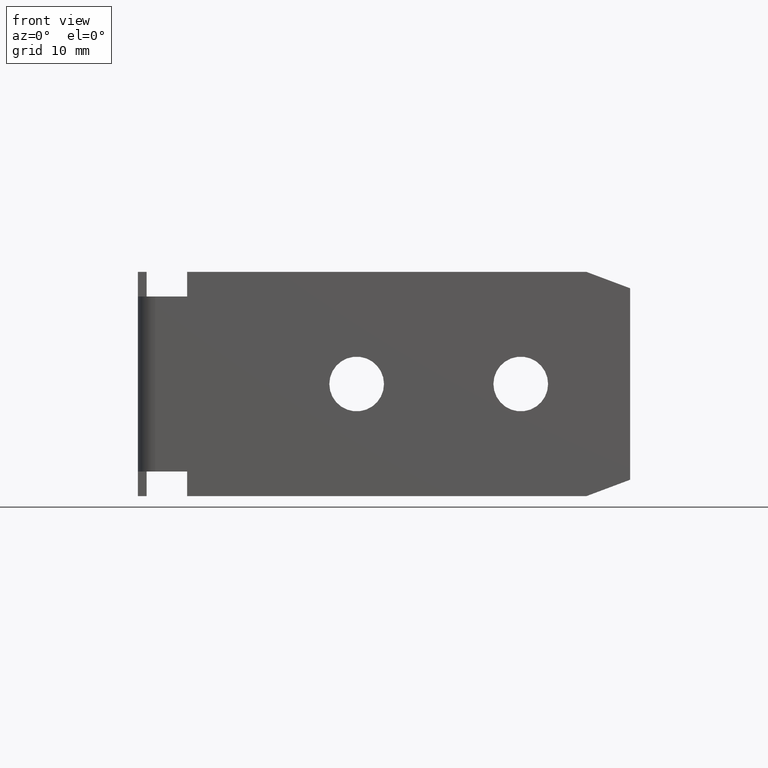
[diagram: clean part render]
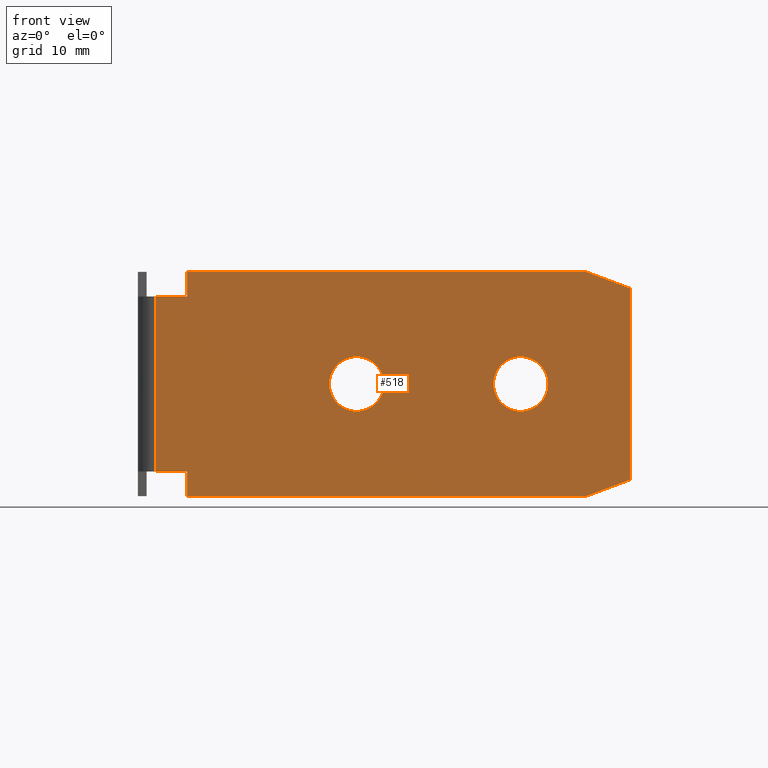
[diagram: same view with one face highlighted and labeled with its STEP entity id]
A machine part, front view. The second image highlights one B-rep face of the part: STEP entity #518.
In plain terms, the highlighted planar face has unit normal (0, -1, 0).
Its self-contained STEP definition (entity closure, byte-faithful):
#19=FACE_BOUND('',#87,.T.);
#20=FACE_BOUND('',#88,.T.);
#30=PLANE('',#579);
#56=FACE_OUTER_BOUND('',#86,.T.);
#86=EDGE_LOOP('',(#427,#428,#429,#430,#431,#432,#433,#434,#435,#436));
#87=EDGE_LOOP('',(#437));
#88=EDGE_LOOP('',(#438));
#103=LINE('',#736,#163);
#110=LINE('',#753,#170);
#140=LINE('',#829,#200);
#141=LINE('',#831,#201);
#142=LINE('',#833,#202);
#143=LINE('',#835,#203);
#144=LINE('',#837,#204);
#145=LINE('',#839,#205);
#146=LINE('',#841,#206);
#147=LINE('',#842,#207);
#163=VECTOR('',#598,10.);
#170=VECTOR('',#611,10.);
#200=VECTOR('',#683,10.);
#201=VECTOR('',#684,10.);
#202=VECTOR('',#685,10.);
#203=VECTOR('',#686,10.);
#204=VECTOR('',#687,10.);
#205=VECTOR('',#688,10.);
#206=VECTOR('',#689,10.);
#207=VECTOR('',#690,10.);
#231=CIRCLE('',#570,2.5);
#233=CIRCLE('',#573,2.5);
#236=VERTEX_POINT('',#733);
#237=VERTEX_POINT('',#735);
#244=VERTEX_POINT('',#751);
#265=VERTEX_POINT('',#805);
#267=VERTEX_POINT('',#811);
#269=VERTEX_POINT('',#828);
#270=VERTEX_POINT('',#830);
#271=VERTEX_POINT('',#832);
#272=VERTEX_POINT('',#834);
#273=VERTEX_POINT('',#836);
#274=VERTEX_POINT('',#838);
#275=VERTEX_POINT('',#840);
#284=EDGE_CURVE('',#236,#237,#103,.T.);
#293=EDGE_CURVE('',#236,#244,#110,.T.);
#319=EDGE_CURVE('',#265,#265,#231,.T.);
#322=EDGE_CURVE('',#267,#267,#233,.T.);
#332=EDGE_CURVE('',#244,#269,#140,.T.);
#333=EDGE_CURVE('',#269,#270,#141,.T.);
#334=EDGE_CURVE('',#270,#271,#142,.T.);
#335=EDGE_CURVE('',#271,#272,#143,.T.);
#336=EDGE_CURVE('',#272,#273,#144,.T.);
#337=EDGE_CURVE('',#273,#274,#145,.T.);
#338=EDGE_CURVE('',#274,#275,#146,.T.);
#339=EDGE_CURVE('',#275,#237,#147,.T.);
#427=ORIENTED_EDGE('',*,*,#284,.F.);
#428=ORIENTED_EDGE('',*,*,#293,.T.);
#429=ORIENTED_EDGE('',*,*,#332,.T.);
#430=ORIENTED_EDGE('',*,*,#333,.T.);
#431=ORIENTED_EDGE('',*,*,#334,.T.);
#432=ORIENTED_EDGE('',*,*,#335,.T.);
#433=ORIENTED_EDGE('',*,*,#336,.T.);
#434=ORIENTED_EDGE('',*,*,#337,.T.);
#435=ORIENTED_EDGE('',*,*,#338,.T.);
#436=ORIENTED_EDGE('',*,*,#339,.T.);
#437=ORIENTED_EDGE('',*,*,#319,.T.);
#438=ORIENTED_EDGE('',*,*,#322,.T.);
#518=ADVANCED_FACE('',(#56,#19,#20),#30,.T.);
#570=AXIS2_PLACEMENT_3D('',#806,#654,#655);
#573=AXIS2_PLACEMENT_3D('',#812,#661,#662);
#579=AXIS2_PLACEMENT_3D('',#827,#681,#682);
#598=DIRECTION('',(0.,0.,1.));
#611=DIRECTION('',(1.,1.72701359386135E-16,0.));
#654=DIRECTION('center_axis',(-1.72701359386135E-16,1.,0.));
#655=DIRECTION('ref_axis',(1.,1.72701359386135E-16,0.));
#661=DIRECTION('center_axis',(-1.72701359386135E-16,1.,0.));
#662=DIRECTION('ref_axis',(1.,1.72701359386135E-16,0.));
#681=DIRECTION('center_axis',(1.72701359386135E-16,-1.,0.));
#682=DIRECTION('ref_axis',(0.,0.,-1.));
#683=DIRECTION('',(-1.48029736616687E-15,-2.55649367432735E-31,-1.));
#684=DIRECTION('',(1.,1.72701359386135E-16,0.));
#685=DIRECTION('',(0.936329177569045,1.61705321799076E-16,0.351123441588391));
#686=DIRECTION('',(0.,0.,1.));
#687=DIRECTION('',(-0.936329177569045,-1.61705321799076E-16,0.351123441588391));
#688=DIRECTION('',(-1.,-1.72701359386135E-16,0.));
#689=DIRECTION('',(0.,0.,-1.));
#690=DIRECTION('',(-1.,-1.72701359386135E-16,1.23259516440783E-31));
#733=CARTESIAN_POINT('',(1.6,-7.49523899735828E-15,-8.));
#735=CARTESIAN_POINT('',(1.6,-7.56431954111273E-15,8.));
#736=CARTESIAN_POINT('',(1.6,-7.49400541621981E-15,0.));
#751=CARTESIAN_POINT('',(4.5,-6.93889390390723E-15,-8.));
#753=CARTESIAN_POINT('',(22.5,-3.88578058618805E-15,-8.));
#805=CARTESIAN_POINT('',(32.5,0.,-3.06161699786838E-16));
#806=CARTESIAN_POINT('Origin',(35.,0.,0.));
#811=CARTESIAN_POINT('',(17.5,0.,-3.06161699786838E-16));
#812=CARTESIAN_POINT('Origin',(20.,0.,0.));
#827=CARTESIAN_POINT('Origin',(45.,0.,0.));
#828=CARTESIAN_POINT('',(4.5,-6.99440505513848E-15,-10.25));
#829=CARTESIAN_POINT('',(4.50000000000001,-7.0082828429463E-15,-3.99999999999997));
#830=CARTESIAN_POINT('',(41.,-6.93889390390723E-16,-10.25));
#831=CARTESIAN_POINT('',(45.,0.,-10.25));
#832=CARTESIAN_POINT('',(45.,0.,-8.75));
#833=CARTESIAN_POINT('',(44.4383561643836,-6.93889390390723E-17,-8.96061643835617));
#834=CARTESIAN_POINT('',(45.,0.,8.75));
#835=CARTESIAN_POINT('',(45.,0.,0.));
#836=CARTESIAN_POINT('',(41.,-6.93889390390723E-16,10.25));
#837=CARTESIAN_POINT('',(46.4383561643836,2.08166817117217E-16,8.21061643835617));
#838=CARTESIAN_POINT('',(4.5,-6.93889390390723E-15,10.25));
#839=CARTESIAN_POINT('',(45.,0.,10.25));
#840=CARTESIAN_POINT('',(4.5,-6.93889390390723E-15,8.));
#841=CARTESIAN_POINT('',(4.5,-7.0082828429463E-15,5.125));
#842=CARTESIAN_POINT('',(22.9,-3.88578058618805E-15,8.));